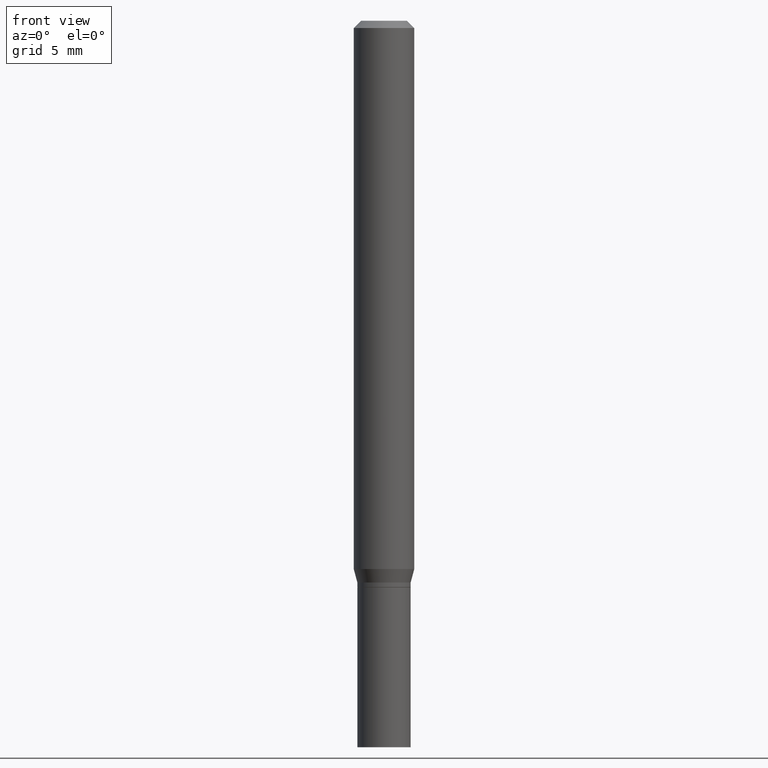
[diagram: clean part render]
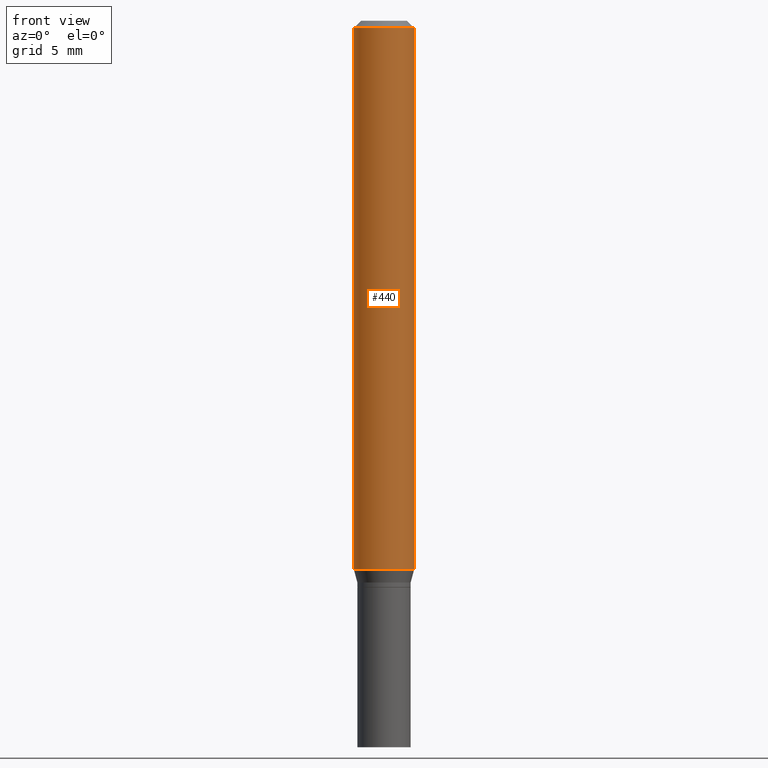
[diagram: same view with one face highlighted and labeled with its STEP entity id]
A machine part, front view. The second image highlights one B-rep face of the part: STEP entity #440.
In plain terms, the highlighted cylindrical surface (edge-blend (fillet) strip) has radius 1.5875 mm, axis along (-0, 0, 1).
Its self-contained STEP definition (entity closure, byte-faithful):
#7 = DIRECTION ( 'NONE',  ( -2.445468806185136597E-29, 3.491481338843145583E-15, 1.000000000000000000 ) ) ;
#8 = EDGE_CURVE ( 'NONE', #206, #126, #428, .T. ) ;
#21 = ORIENTED_EDGE ( 'NONE', *, *, #292, .F. ) ;
#36 = LINE ( 'NONE', #37, #303 ) ;
#37 = CARTESIAN_POINT ( 'NONE',  ( -0.06250000000000000000, 4.440892098500626162E-16, -3.074334431409316114E-30 ) ) ;
#41 = DIRECTION ( 'NONE',  ( 1.000000000000000000, -6.982962677686270655E-15, 0.000000000000000000 ) ) ;
#55 = AXIS2_PLACEMENT_3D ( 'NONE', #290, #218, #116 ) ;
#65 = ORIENTED_EDGE ( 'NONE', *, *, #8, .T. ) ;
#93 = CARTESIAN_POINT ( 'NONE',  ( 0.06250000000000000000, -4.388825627286632416E-15, -1.132009618943233820 ) ) ;
#98 = CARTESIAN_POINT ( 'NONE',  ( -0.06250000000000000000, -3.508301250081178130E-15, -1.132009618943233820 ) ) ;
#102 = EDGE_CURVE ( 'NONE', #126, #187, #134, .T. ) ;
#116 = DIRECTION ( 'NONE',  ( 1.000000000000000000, -6.982962677686266711E-15, 4.876176775795935793E-29 ) ) ;
#125 = DIRECTION ( 'NONE',  ( -2.445468806185136597E-29, 3.491481338843145583E-15, 1.000000000000000000 ) ) ;
#126 = VERTEX_POINT ( 'NONE', #93 ) ;
#128 = CARTESIAN_POINT ( 'NONE',  ( 3.668203209277705088E-31, -5.237222008264718399E-17, -0.01499999999999999944 ) ) ;
#132 = DIRECTION ( 'NONE',  ( 1.000000000000000000, -6.982962677686266711E-15, 0.000000000000000000 ) ) ;
#134 = LINE ( 'NONE', #161, #437 ) ;
#137 = FACE_OUTER_BOUND ( 'NONE', #401, .T. ) ;
#149 = CIRCLE ( 'NONE', #209, 0.06250000000000000000 ) ;
#154 = CYLINDRICAL_SURFACE ( 'NONE', #55, 0.06250000000000000000 ) ;
#161 = CARTESIAN_POINT ( 'NONE',  ( 0.06250000000000000000, -4.364351673553916694E-16, 3.047610484872459871E-30 ) ) ;
#162 = ORIENTED_EDGE ( 'NONE', *, *, #102, .T. ) ;
#187 = VERTEX_POINT ( 'NONE', #443 ) ;
#190 = EDGE_CURVE ( 'NONE', #380, #187, #149, .T. ) ;
#205 = CARTESIAN_POINT ( 'NONE',  ( -0.06250000000000000000, -1.558292130156881494E-15, -0.01499999999999999944 ) ) ;
#206 = VERTEX_POINT ( 'NONE', #98 ) ;
#209 = AXIS2_PLACEMENT_3D ( 'NONE', #128, #125, #132 ) ;
#218 = DIRECTION ( 'NONE',  ( -2.445468806185136597E-29, 3.491481338843145583E-15, 1.000000000000000000 ) ) ;
#235 = DIRECTION ( 'NONE',  ( -2.445468806185136877E-29, 3.491481338843145188E-15, 1.000000000000000000 ) ) ;
#290 = CARTESIAN_POINT ( 'NONE',  ( 0.000000000000000000, 0.000000000000000000, 0.000000000000000000 ) ) ;
#292 = EDGE_CURVE ( 'NONE', #206, #380, #36, .T. ) ;
#295 = ORIENTED_EDGE ( 'NONE', *, *, #190, .F. ) ;
#303 = VECTOR ( 'NONE', #416, 39.37007874015748143 ) ;
#331 = CARTESIAN_POINT ( 'NONE',  ( 2.768294211427201206E-29, -3.952390459931240746E-15, -1.132009618943233820 ) ) ;
#375 = AXIS2_PLACEMENT_3D ( 'NONE', #331, #7, #41 ) ;
#380 = VERTEX_POINT ( 'NONE', #205 ) ;
#401 = EDGE_LOOP ( 'NONE', ( #21, #65, #162, #295 ) ) ;
#416 = DIRECTION ( 'NONE',  ( -2.445468806185136877E-29, 3.491481338843145188E-15, 1.000000000000000000 ) ) ;
#428 = CIRCLE ( 'NONE', #375, 0.06250000000000000000 ) ;
#437 = VECTOR ( 'NONE', #235, 39.37007874015748143 ) ;
#440 = ADVANCED_FACE ( 'NONE', ( #137 ), #154, .T. ) ;
#443 = CARTESIAN_POINT ( 'NONE',  ( 0.06250000000000000000, -4.888073874380388472E-16, -0.01499999999999999944 ) ) ;